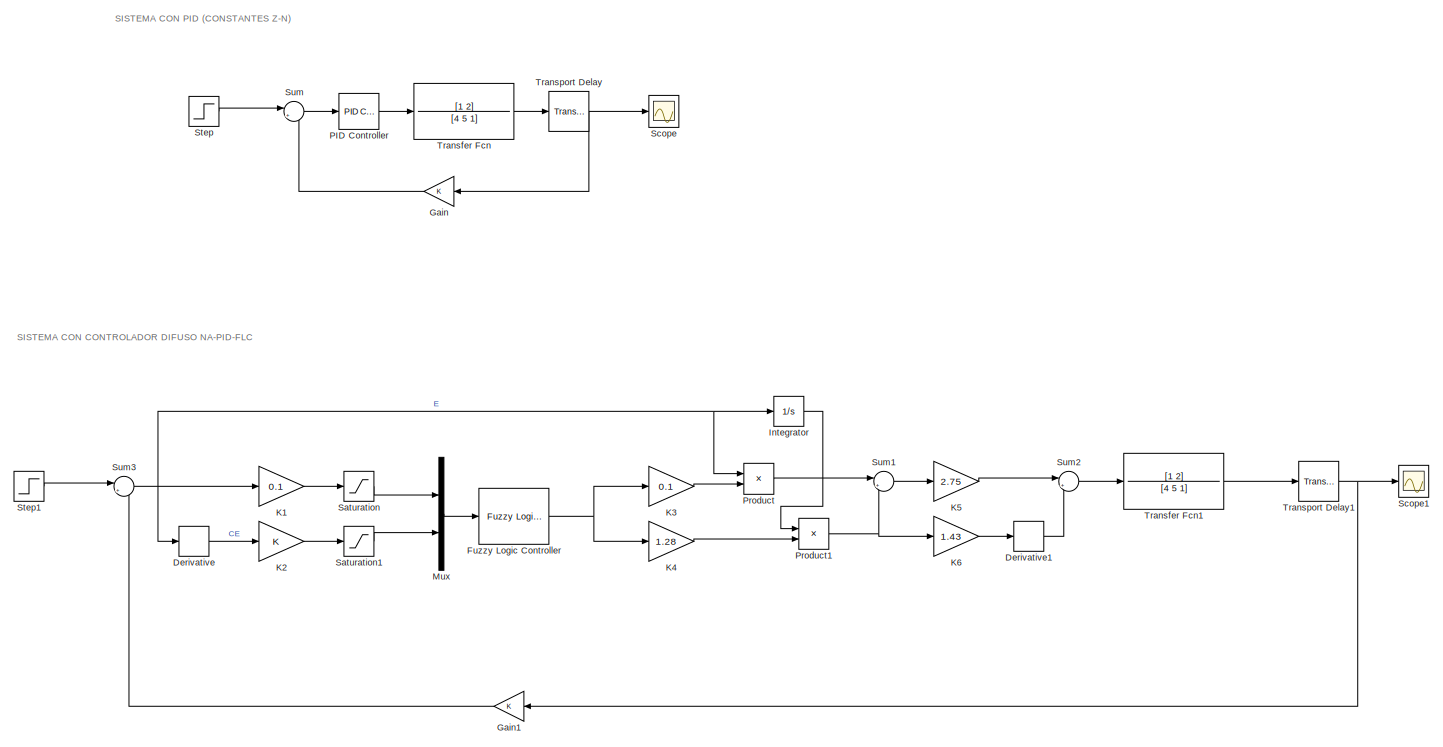
[diagram: root canvas - part 1/2, full width, top band]
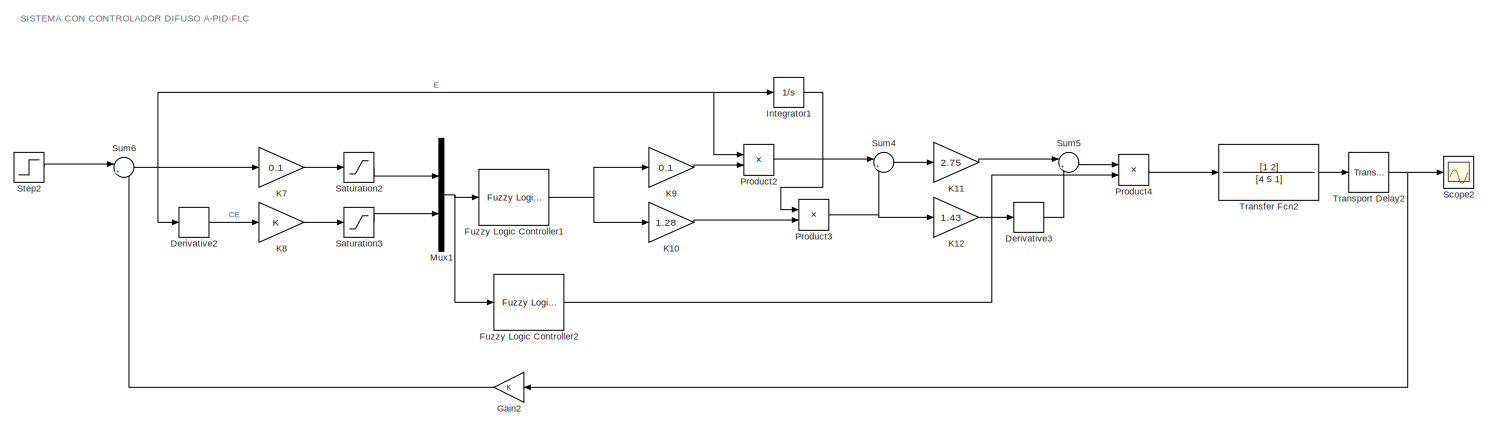
[diagram: root canvas - part 2/2, full width, bottom band]
MODEL slx_cc5e6f253e13
KIND model
CONFIG AbsTol = auto
CONFIG EnableMultiTasking = off
CONFIG FixedStep = auto
CONFIG MaxStep = auto
CONFIG MinStep = auto
CONFIG RelTol = 1e-3
CONFIG SampleTimeConstraint = Unconstrained
CONFIG SolverName = VariableStepAuto
CONFIG StartTime = 0.0
CONFIG StopTime = 50
BLOCK [Derivative] Derivative
BLOCK [Derivative] Derivative1
BLOCK [Derivative] Derivative2
BLOCK [Derivative] Derivative3
BLOCK [Reference] Fuzzy Logic Controller  REF=fuzblock/Fuzzy Logic   (lib defined in mdl_858b3b3e7478)
Controller
  SourceBlock = fuzblock/Fuzzy Logic \nController
  SourceType = Fuzzy Inference System
BLOCK [Reference] Fuzzy Logic Controller1  REF=fuzblock/Fuzzy Logic   (lib defined in mdl_858b3b3e7478)
Controller
  SourceBlock = fuzblock/Fuzzy Logic \nController
  SourceType = Fuzzy Inference System
BLOCK [Reference] Fuzzy Logic Controller2  REF=fuzblock/Fuzzy Logic   (lib defined in mdl_858b3b3e7478)
Controller
  SourceBlock = fuzblock/Fuzzy Logic \nController
  SourceType = Fuzzy Inference System
BLOCK [Gain] Gain
  NameLocation = top
BLOCK [Gain] Gain1
  NameLocation = top
BLOCK [Gain] Gain2
  NameLocation = top
BLOCK [Integrator] Integrator
BLOCK [Integrator] Integrator1
BLOCK [Gain] K1
  Gain = 0.1
BLOCK [Gain] K10
  Gain = 1.28
BLOCK [Gain] K11
  Gain = 2.75
BLOCK [Gain] K12
  Gain = 1.43
BLOCK [Gain] K2
BLOCK [Gain] K3
  Gain = 0.1
BLOCK [Gain] K4
  Gain = 1.28
BLOCK [Gain] K5
  Gain = 2.75
BLOCK [Gain] K6
  Gain = 1.43
BLOCK [Gain] K7
  Gain = 0.1
BLOCK [Gain] K8
BLOCK [Gain] K9
  Gain = 0.1
BLOCK [Mux] Mux
  DisplayOption = bar
  Inputs = 2
BLOCK [Mux] Mux1
  DisplayOption = bar
  Inputs = 2
BLOCK [Reference] PID Controller  REF=slpidlib/PID Controller
  LibrarySourceBlock = simulink/Continuous/PID Controller
  SourceBlock = slpidlib/PID Controller
  SourceType = PID 1dof
BLOCK [Product] Product
BLOCK [Product] Product1
BLOCK [Product] Product2
BLOCK [Product] Product3
BLOCK [Product] Product4
BLOCK [Saturate] Saturation
  LowerLimit = -1
  UpperLimit = 1
BLOCK [Saturate] Saturation1
  LowerLimit = -1
  UpperLimit = 1
BLOCK [Saturate] Saturation2
  LowerLimit = -1
  UpperLimit = 1
BLOCK [Saturate] Saturation3
  LowerLimit = -1
  UpperLimit = 1
BLOCK [Scope] Scope
  Floating = off
  NumInputPorts = 1
  ScopeSpecificationString = Simulink.scopes.TimeScopeBlockCfg('CurrentConfiguration', extmgr.ConfigurationSet(extmgr.Configuration('Core','General UI',true),extmgr.Configuration('Core','Source UI',true),extmgr.Configuration('Sources','WiredSimulink',true),extmgr.Configuration('Visuals','Time Domain',true,'SerializedDisplays',{struct('MinYLimReal','-0.20228','MaxYLimReal','1.82054','YLabelReal','','MinYLimMag','0.00000','MaxY...<+1457ch>
BLOCK [Scope] Scope1
  Floating = off
  NumInputPorts = 1
  ScopeSpecificationString = Simulink.scopes.TimeScopeBlockCfg('CurrentConfiguration', extmgr.ConfigurationSet(extmgr.Configuration('Core','General UI',true),extmgr.Configuration('Core','Source UI',true),extmgr.Configuration('Sources','WiredSimulink',true,'DataLoggingVariableName','ScopeData1'),extmgr.Configuration('Visuals','Time Domain',true,'SerializedDisplays',{struct('MinYLimReal','-27.77165','MaxYLimReal','25.73017','YL...<+1501ch>
BLOCK [Scope] Scope2
  Floating = off
  NumInputPorts = 1
  ScopeSpecificationString = Simulink.scopes.TimeScopeBlockCfg('CurrentConfiguration', extmgr.ConfigurationSet(extmgr.Configuration('Core','General UI',true),extmgr.Configuration('Core','Source UI',true),extmgr.Configuration('Sources','WiredSimulink',true,'DataLoggingVariableName','ScopeData2'),extmgr.Configuration('Visuals','Time Domain',true,'SerializedDisplays',{struct('MinYLimReal','-5.99149','MaxYLimReal','7.03566','YLab...<+1495ch>
BLOCK [Step] Step
  SampleTime = 0
BLOCK [Step] Step1
  SampleTime = 0
BLOCK [Step] Step2
  SampleTime = 0
BLOCK [Sum] Sum
  Inputs = |+-
BLOCK [Sum] Sum1
  Inputs = |++
BLOCK [Sum] Sum2
  Inputs = |++
BLOCK [Sum] Sum3
  Inputs = |+-
BLOCK [Sum] Sum4
  Inputs = |++
BLOCK [Sum] Sum5
  Inputs = |++
BLOCK [Sum] Sum6
  Inputs = |+-
BLOCK [TransferFcn] Transfer Fcn
  Denominator = [4 5 1]
  Numerator = [1 2]
BLOCK [TransferFcn] Transfer Fcn1
  Denominator = [4 5 1]
  Numerator = [1 2]
BLOCK [TransferFcn] Transfer Fcn2
  Denominator = [4 5 1]
  Numerator = [1 2]
BLOCK [TransportDelay] Transport Delay
  DelayTime = 0.5
BLOCK [TransportDelay] Transport Delay1
  DelayTime = 0.5
BLOCK [TransportDelay] Transport Delay2
  DelayTime = 0.5
ANNOTATION (root): SISTEMA CON CONTROLADOR DIFUSO A-PID-FLC
ANNOTATION (root): SISTEMA CON CONTROLADOR DIFUSO NA-PID-FLC
ANNOTATION (root): SISTEMA CON PID (CONSTANTES Z-N)
LINE Derivative1:1 -> Sum2:2
LINE Derivative2:1 -> K8:1
LINE Derivative3:1 -> Sum5:2
LINE Derivative:1 -> K2:1
NET Fuzzy Logic Controller1:1 -> K10:1, K9:1
LINE Fuzzy Logic Controller2:1 -> Product4:2
NET Fuzzy Logic Controller:1 -> K3:1, K4:1
LINE Gain1:1 -> Sum3:2
LINE Gain2:1 -> Sum6:2
LINE Gain:1 -> Sum:2
LINE Integrator1:1 -> Product3:1
LINE Integrator:1 -> Product1:1
LINE K10:1 -> Product3:2
LINE K11:1 -> Sum5:1
LINE K12:1 -> Derivative3:1
LINE K1:1 -> Saturation:1
LINE K2:1 -> Saturation1:1
LINE K3:1 -> Product:2
LINE K4:1 -> Product1:2
LINE K5:1 -> Sum2:1
LINE K6:1 -> Derivative1:1
LINE K7:1 -> Saturation2:1
LINE K8:1 -> Saturation3:1
LINE K9:1 -> Product2:2
NET Mux1:1 -> Fuzzy Logic Controller1:1, Fuzzy Logic Controller2:1
LINE Mux:1 -> Fuzzy Logic Controller:1
LINE PID Controller:1 -> Transfer Fcn:1
NET Product1:1 -> K6:1, Sum1:2
LINE Product2:1 -> Sum4:1
NET Product3:1 -> K12:1, Sum4:2
LINE Product4:1 -> Transfer Fcn2:1
LINE Product:1 -> Sum1:1
LINE Saturation1:1 -> Mux:2
LINE Saturation2:1 -> Mux1:1
LINE Saturation3:1 -> Mux1:2
LINE Saturation:1 -> Mux:1
LINE Step1:1 -> Sum3:1
LINE Step2:1 -> Sum6:1
LINE Step:1 -> Sum:1
LINE Sum1:1 -> K5:1
LINE Sum2:1 -> Transfer Fcn1:1
NET Sum3:1 -> Derivative:1, Integrator:1, K1:1, Product:1
LINE Sum4:1 -> K11:1
LINE Sum5:1 -> Product4:1
NET Sum6:1 -> Derivative2:1, Integrator1:1, K7:1, Product2:1
LINE Sum:1 -> PID Controller:1
LINE Transfer Fcn1:1 -> Transport Delay1:1
LINE Transfer Fcn2:1 -> Transport Delay2:1
LINE Transfer Fcn:1 -> Transport Delay:1
NET Transport Delay1:1 -> Gain1:1, Scope1:1
NET Transport Delay2:1 -> Gain2:1, Scope2:1
NET Transport Delay:1 -> Gain:1, Scope:1
note: NET lines group one-source signal fan-out (src -> all destinations, sorted); 1:1 wires keep LINE
